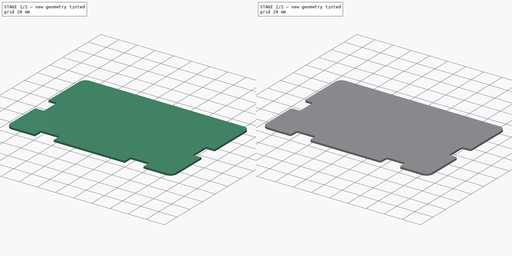
[diagram: build sequence overview — one tinted view per stage of 2, left to right]
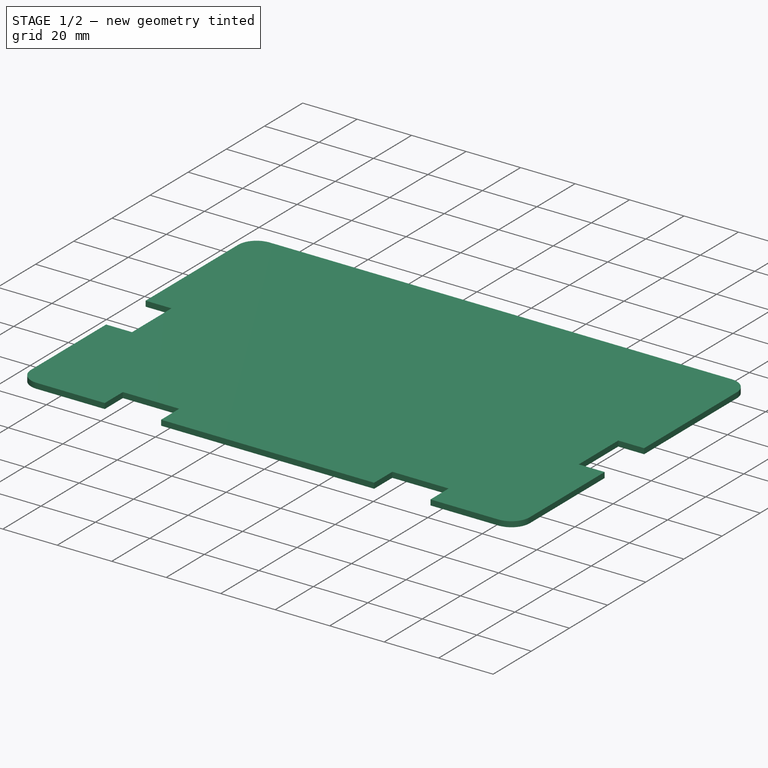
[diagram: stage 1 of 2 — iso view after this stage's code; geometry added in this stage tinted green]
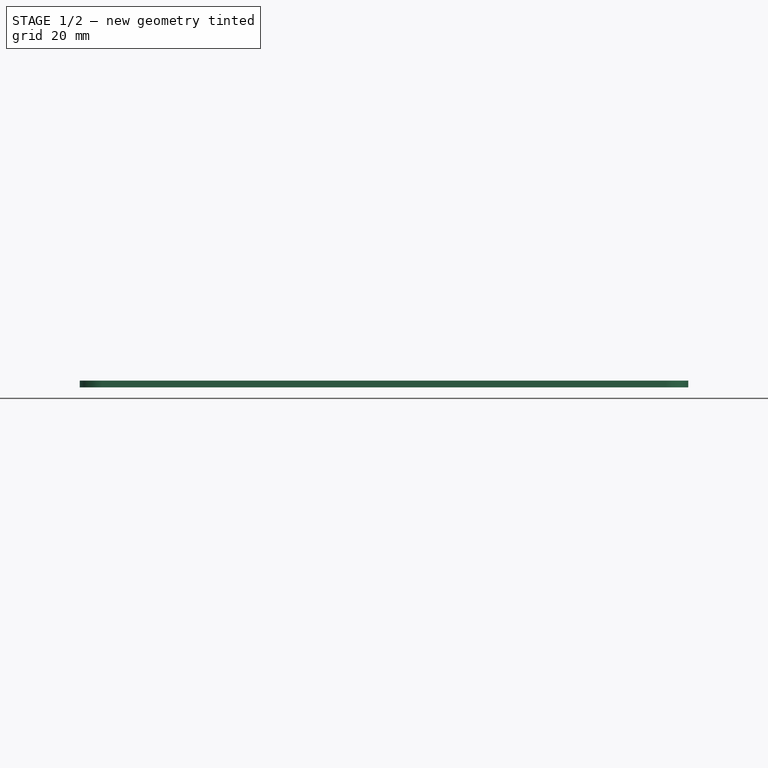
[diagram: stage 1 of 2 — front view after this stage's code; geometry added in this stage tinted green]
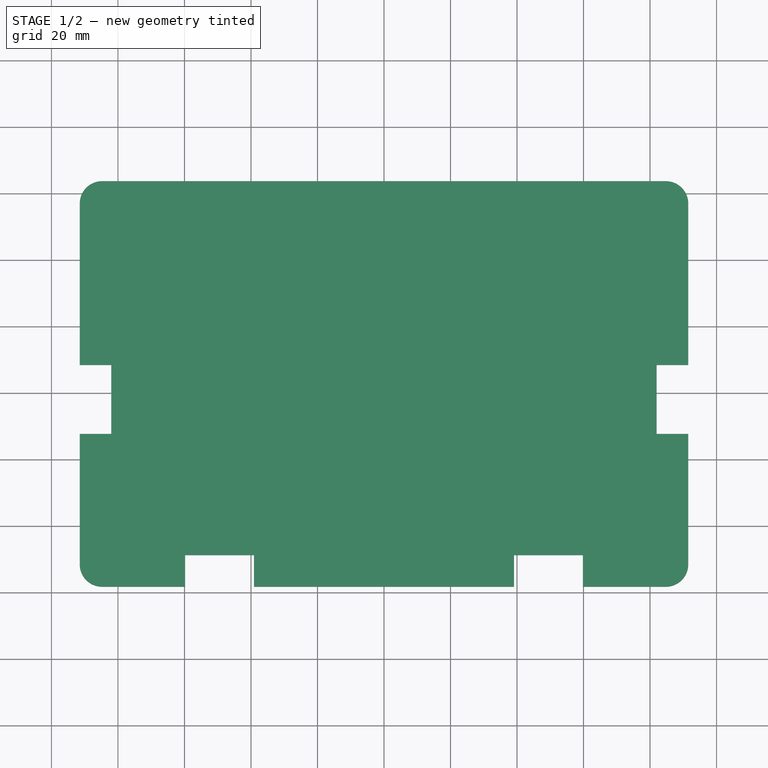
[diagram: stage 1 of 2 — top view after this stage's code; geometry added in this stage tinted green]
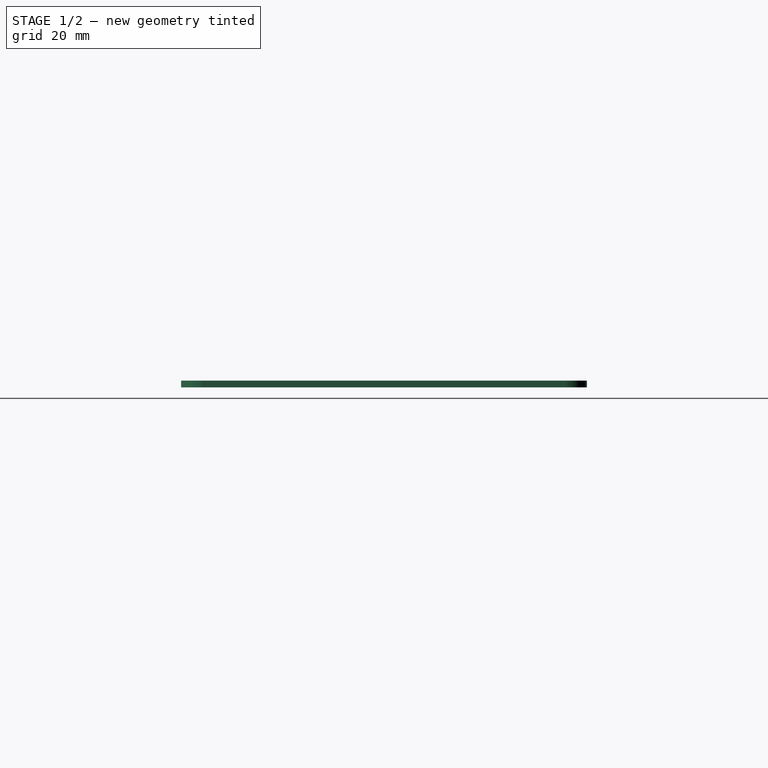
[diagram: stage 1 of 2 — right view after this stage's code; geometry added in this stage tinted green]
FCSTD DOCUMENT  (FreeCAD 1.1R38894 (Git))
Label: Безымянный3
License: All rights reserved
LicenseURL: https://en.wikipedia.org/wiki/All_rights_reserved
objects: Sketcher::SketchObject×1, PartDesign::Pad×1, PartDesign::Fillet×1, PartDesign::Body×1, TechDraw::DrawSVGTemplate×1, TechDraw::DrawPage×1
note: 9 computed .brp shape members not serialized (recipe doc carries the construction recipe); baked Part::Feature solids carry a one-line shape summary decoded from their .brp

FEATURE [Sketcher::SketchObject] Sketch
  ArcFitTolerance = 1e-06
  AttachmentSupport = -> [XY_Plane]
  FullyConstrained = false
  MakeInternals = false
  MapMode = 5
  sketch-geometry (26):
    g0: LineSegment StartX=-91.5 StartY=56.9842 StartZ=0 EndX=-91.5 EndY=8.43423 EndZ=0
    g1: LineSegment StartX=-84.75 StartY=-58.2658 StartZ=0 EndX=-59.8 EndY=-58.2658 EndZ=0
    g2: LineSegment StartX=91.5 StartY=-51.5158 StartZ=0 EndX=91.5 EndY=-12.2658 EndZ=0
    g3: LineSegment StartX=84.75 StartY=63.7342 StartZ=0 EndX=-84.75 EndY=63.7342 EndZ=0
    g4: ArcOfCircle CenterX=-84.75 CenterY=56.9842 CenterZ=0 NormalX=0 NormalY=0 NormalZ=1 AngleXU=0 Radius=6.75 StartAngle=1.5708 EndAngle=3.14159
    g5: ArcOfCircle CenterX=-84.75 CenterY=-51.5158 CenterZ=0 NormalX=0 NormalY=0 NormalZ=1 AngleXU=0 Radius=6.75 StartAngle=3.14159 EndAngle=4.71239
    g6: ArcOfCircle CenterX=84.75 CenterY=-51.5158 CenterZ=0 NormalX=0 NormalY=0 NormalZ=1 AngleXU=0 Radius=6.75 StartAngle=4.71239 EndAngle=6.28319
    g7: ArcOfCircle CenterX=84.75 CenterY=56.9842 CenterZ=0 NormalX=0 NormalY=0 NormalZ=1 AngleXU=0 Radius=6.75 StartAngle=0 EndAngle=1.5708
    g8: GeomPoint [constr] X=-91.5 Y=63.7342 Z=0
    g9: GeomPoint [constr] X=91.5 Y=-58.2658 Z=0
    g10: LineSegment StartX=-91.5 StartY=-12.2658 StartZ=0 EndX=-82 EndY=-12.2658 EndZ=0
    g11: LineSegment StartX=-82 StartY=-12.2658 StartZ=0 EndX=-82 EndY=8.43423 EndZ=0
    g12: LineSegment StartX=-82 StartY=8.43423 StartZ=0 EndX=-91.5 EndY=8.43423 EndZ=0
    g13: LineSegment StartX=-39.1 StartY=-58.2658 StartZ=0 EndX=-39.1 EndY=-48.7658 EndZ=0
    g14: LineSegment StartX=-39.1 StartY=-48.7658 StartZ=0 EndX=-59.8 EndY=-48.7658 EndZ=0
    g15: LineSegment StartX=-59.8 StartY=-48.7658 StartZ=0 EndX=-59.8 EndY=-58.2658 EndZ=0
    g16: LineSegment StartX=59.8 StartY=-58.2658 StartZ=0 EndX=59.8 EndY=-48.7658 EndZ=0
    g17: LineSegment StartX=59.8 StartY=-48.7658 StartZ=0 EndX=39.1 EndY=-48.7658 EndZ=0
    g18: LineSegment StartX=39.1 StartY=-48.7658 StartZ=0 EndX=39.1 EndY=-58.2658 EndZ=0
    g19: LineSegment StartX=91.5 StartY=8.43423 StartZ=0 EndX=82 EndY=8.43423 EndZ=0
    g20: LineSegment StartX=82 StartY=8.43423 StartZ=0 EndX=82 EndY=-12.2658 EndZ=0
    g21: LineSegment StartX=82 StartY=-12.2658 StartZ=0 EndX=91.5 EndY=-12.2658 EndZ=0
    g22: LineSegment StartX=91.5 StartY=8.43423 StartZ=0 EndX=91.5 EndY=56.9842 EndZ=0
    g23: LineSegment StartX=59.8 StartY=-58.2658 StartZ=0 EndX=84.75 EndY=-58.2658 EndZ=0
    g24: LineSegment StartX=-39.1 StartY=-58.2658 StartZ=0 EndX=39.1 EndY=-58.2658 EndZ=0
    g25: LineSegment StartX=-91.5 StartY=-12.2658 StartZ=0 EndX=-91.5 EndY=-51.5158 EndZ=0
  constraints (55):
    c: Tangent(g0,g4) = -1.5708
    c: Coincident(g25,g5) = -1.5708
    c: Tangent(g1,g5) = -1.5708
    c: Coincident(g23,g6) = -1.5708
    c: Tangent(g2,g6) = -1.5708
    c: Coincident(g22,g7) = -1.5708
    c: Tangent(g3,g7) = -1.5708
    c: Tangent(g3,g4) = -1.5708
    c: Vertical(g0)
    c: Vertical(g2)
    c: Horizontal(g1)
    c: Horizontal(g3)
    c: Equal(g4,g5)
    c: Equal(g5,g6)
    c: Equal(g6,g7)
    c: PointOnObject(g8,g0)
    c: PointOnObject(g8,g3)
    c: PointOnObject(g9,g23)
    c: PointOnObject(g9,g2)
    c: Radius(g5) = 6.75
    c: Coincident(g10,g11)
    c: Coincident(g11,g12)
    c: Vertical(g11)
    c: Horizontal(g10)
    c: Horizontal(g12)
    c: Coincident(g13,g14)
    c: Coincident(g14,g15)
    c: Horizontal(g14)
    c: Vertical(g13)
    c: Vertical(g15)
    c: Coincident(g16,g17)
    c: Coincident(g17,g18)
    c: Horizontal(g17)
    c: Vertical(g16)
    c: Vertical(g18)
    c: Coincident(g19,g20)
    c: Coincident(g20,g21)
    c: Horizontal(g19)
    c: Horizontal(g21)
    c: Vertical(g20)
    c: PointOnObject(g19,g22)
    c: Equal(g11,g14)
    c: Equal(g15,g10)
    c: DistanceX(g14,g14) = 20.7
    c: DistanceY(g13,g13) = 9.5
    c: Symmetric(g12,g19,g-2)
    c: Symmetric(g20,g10,g-2)
    c: Symmetric(g16,g14,g-2)
    c: Symmetric(g18,g13,g-2)
    c: DistanceX(g25,g14) = 31.7
    c: DistanceY(g1,g10) = 46
    c: DistanceY(g23,g3) = 122
    c: Distance(g0,g2) = 183
    c: PointOnObject(g2,g21)
    c: PointOnObject(g22,g19)
FEATURE [PartDesign::Pad] Pad
  Direction = (0,0,1)
  Length = 2
  Length2 = 10
  Profile = -> Sketch
  ReferenceAxis = -> Sketch [N_Axis]
  Refine = true
  Suppressed = false
  Type = 0
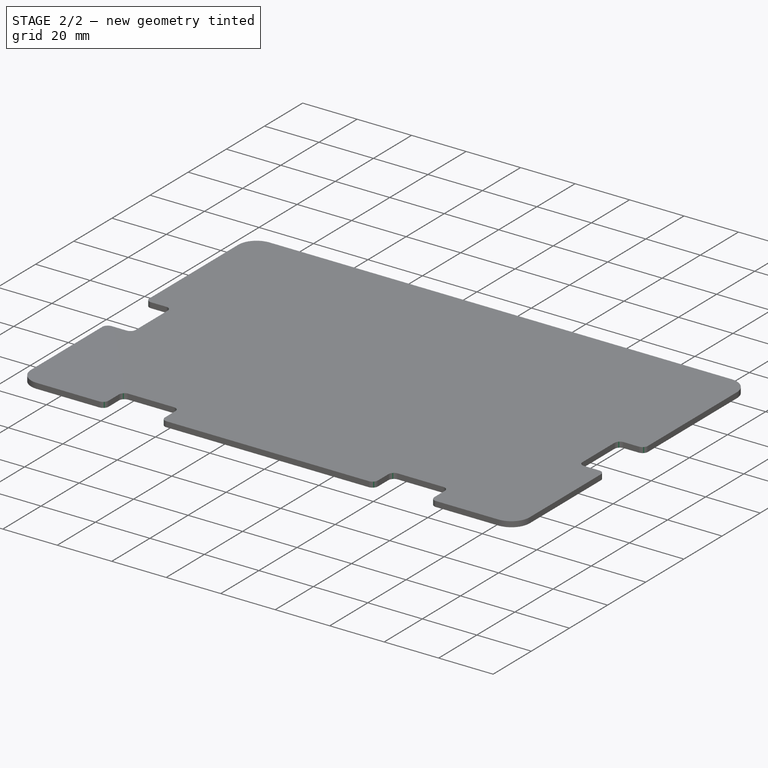
[diagram: stage 2 of 2 — iso view after this stage's code; geometry added in this stage tinted green]
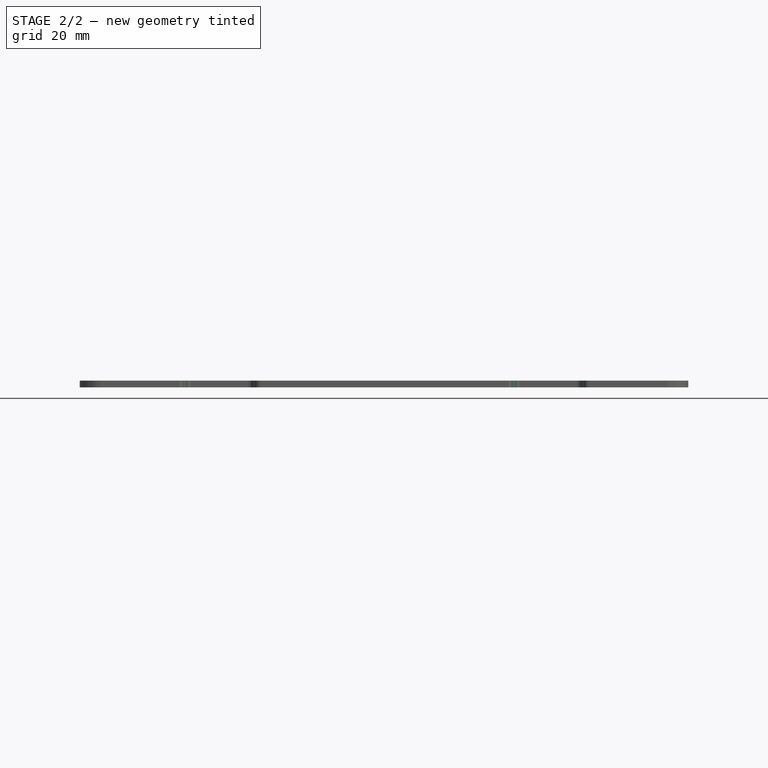
[diagram: stage 2 of 2 — front view after this stage's code; geometry added in this stage tinted green]
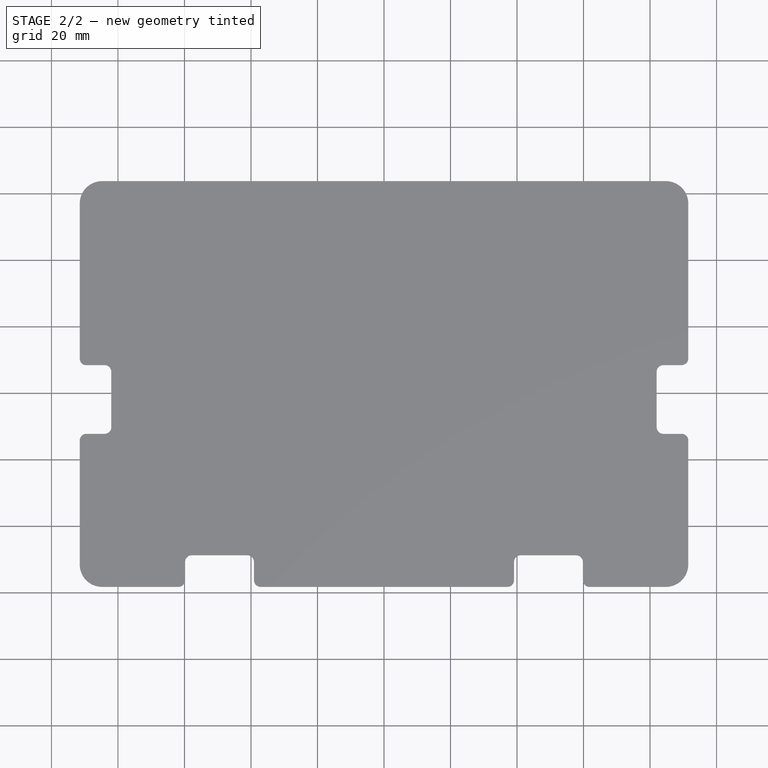
[diagram: stage 2 of 2 — top view after this stage's code; geometry added in this stage tinted green]
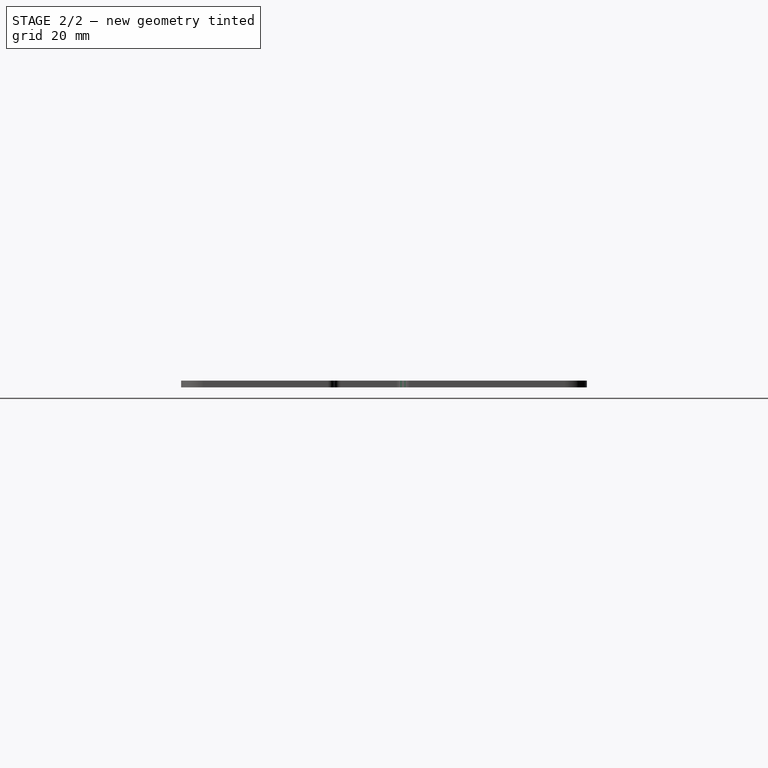
[diagram: stage 2 of 2 — right view after this stage's code; geometry added in this stage tinted green]
FEATURE [PartDesign::Fillet] Fillet
  Base = -> Pad [Edge17,Edge14,Edge20,Edge23,Edge38,Edge35,Edge47,Edge32,Edge41,Edge44,Edge50,Edge53,Edge68,Edge1,Edge62,Edge65]
  BaseFeature = -> Pad
  Radius = 2
  Refine = true
  SupportTransform = false
  Suppressed = false
  UseAllEdges = false
FEATURE [PartDesign::Body] Body  label="Тело"
  AllowCompound = false
  Group = -> [Sketch,Pad,Fillet]
  Origin = -> Origin
  Tip = -> Fillet
FEATURE [TechDraw::DrawSVGTemplate] Template  label="Шаблон"
  EditableTexts = approval_person=E. Timashkova; creator=I. Timashkow; date_of_issue=05.10.2024; document_type=Assembly Drawing; general_tolerances=ISO 2768-m; identification_number=DN; language_code=EN; part_material=Plastik, type: PLA; revision_index=AAA; sheet_number=1 / 1; sheet_scale=1 : 1
  Height = 210
  Orientation = 1
  Template = /snap/freecad/1155/usr/share/Mod/TechDraw/Templates/A4_Landscape_ISO5457_minimal.svg
  Width = 297
FEATURE [TechDraw::DrawPage] Page  label="Страница"
  KeepUpdated = true
  NextBalloonIndex = 1
  ProjectionType = 0
  Template = -> Template
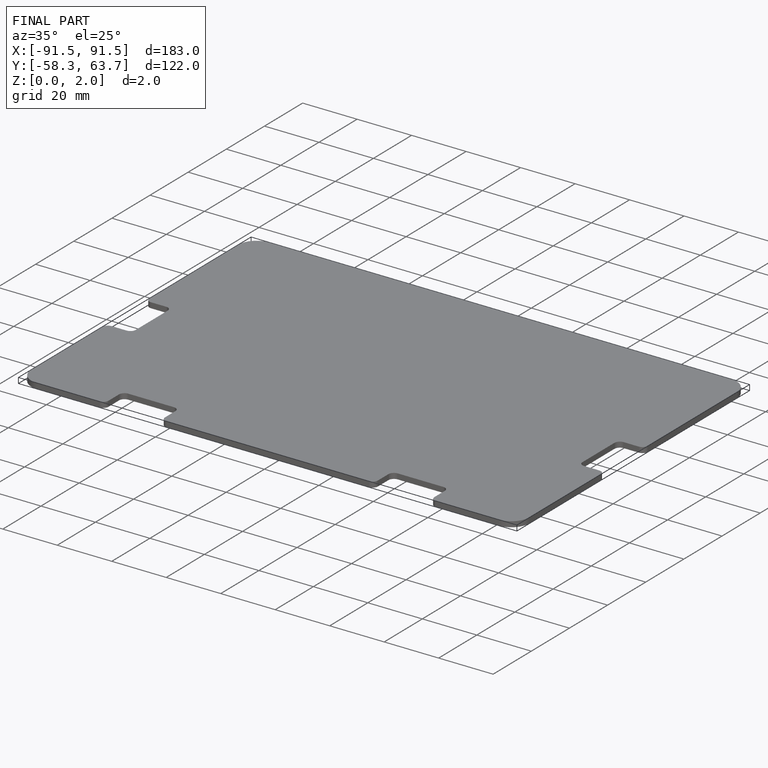
[diagram: finished part — iso view with bounding-box wireframe]
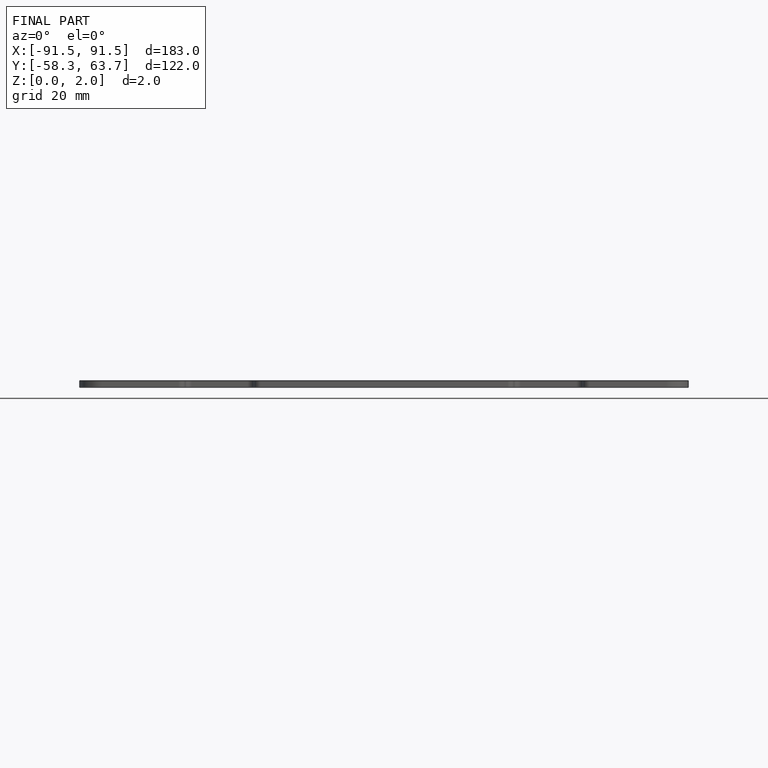
[diagram: finished part — front view with bounding-box wireframe]
